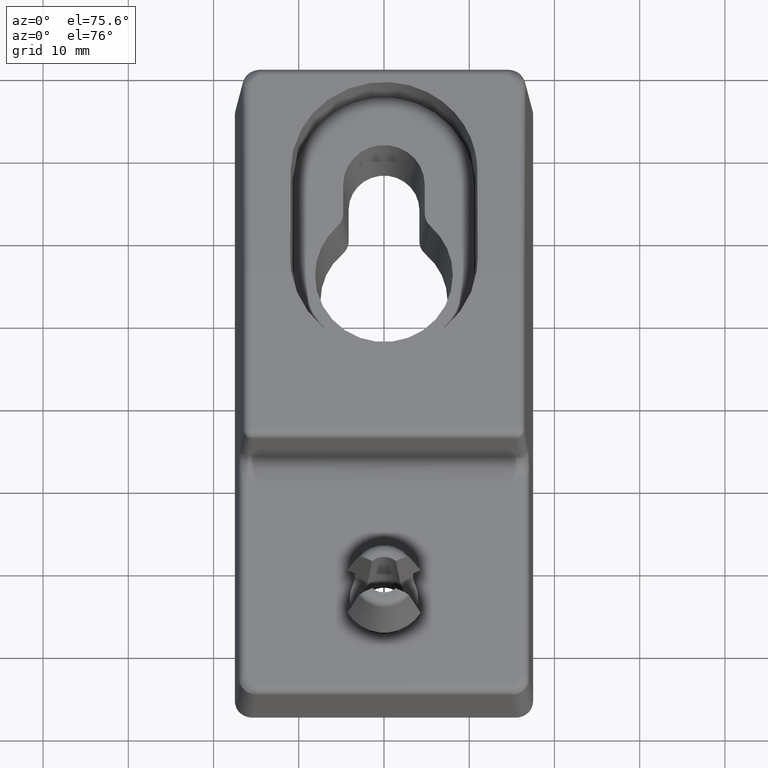
[diagram: clean part render]
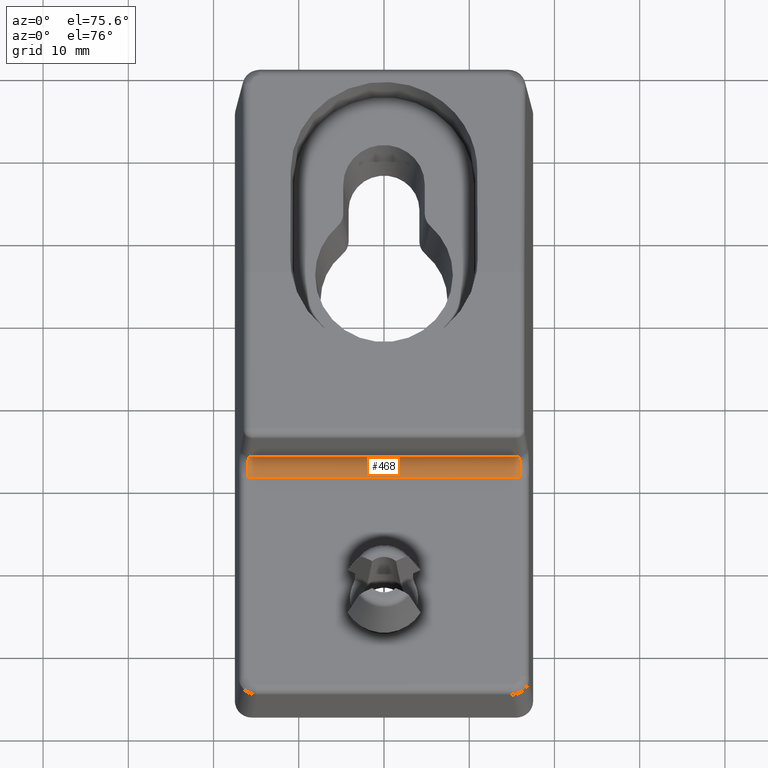
[diagram: same view with one face highlighted and labeled with its STEP entity id]
A machine part, auxiliary view. The second image highlights one B-rep face of the part: STEP entity #468.
In plain terms, the highlighted cylindrical surface (edge-blend (fillet) strip) has radius 2 mm, axis along (-1, 0, 0).
Its self-contained STEP definition (entity closure, byte-faithful):
#26 = CARTESIAN_POINT ( 'NONE',  ( 15.87704052916603600, -8.925670063920609500, 1.895328087514112500 ) ) ;
#34 = EDGE_CURVE ( 'NONE', #2832, #2117, #2043, .T. ) ;
#70 = CARTESIAN_POINT ( 'NONE',  ( -16.02603543328511600, -10.92292913342975800, 0.0000000000000000000 ) ) ;
#222 = ORIENTED_EDGE ( 'NONE', *, *, #587, .F. ) ;
#468 = ADVANCED_FACE ( 'NONE', ( #592 ), #1698, .F. ) ;
#587 = EDGE_CURVE ( 'NONE', #2832, #2307, #2272, .T. ) ;
#592 = FACE_OUTER_BOUND ( 'NONE', #2163, .T. ) ;
#604 = AXIS2_PLACEMENT_3D ( 'NONE', #2596, #3070, #2380 ) ;
#654 = CARTESIAN_POINT ( 'NONE',  ( 16.02603543328513100, -9.799428280176069700, -9.119841876925439000E-017 ) ) ;
#901 = CARTESIAN_POINT ( 'NONE',  ( 16.02603543328512400, -10.92292913342975800, 0.0000000000000000000 ) ) ;
#1154 = ORIENTED_EDGE ( 'NONE', *, *, #34, .T. ) ;
#1233 = DIRECTION ( 'NONE',  ( -1.000000000000000000, 0.0000000000000000000, -0.0000000000000000000 ) ) ;
#1240 = CARTESIAN_POINT ( 'NONE',  ( -15.87704052916603300, -8.925670063920609500, 1.895328087514112500 ) ) ;
#1270 = VECTOR ( 'NONE', #2494, 1000.000000000000000 ) ;
#1369 = CARTESIAN_POINT ( 'NONE',  ( -15.87704052916603300, -8.925670063920609500, 1.895328087514112500 ) ) ;
#1384 =( BOUNDED_CURVE ( )  B_SPLINE_CURVE ( 3, ( #1240, #1979, #1886, #2846 ),
 .UNSPECIFIED., .F., .F. ) 
 B_SPLINE_CURVE_WITH_KNOTS ( ( 4, 4 ),
 ( 4.764748857944521600, 6.283185307179588900 ),
 .UNSPECIFIED. ) 
 CURVE ( )  GEOMETRIC_REPRESENTATION_ITEM ( )  RATIONAL_B_SPLINE_CURVE ( ( 1.000000000000000000, 0.8169162473415250100, 0.8169162473415250100, 1.000000000000000000 ) ) 
 REPRESENTATION_ITEM ( '' )  );
#1420 = LINE ( 'NONE', #2739, #1270 ) ;
#1698 = CYLINDRICAL_SURFACE ( 'NONE', #604, 2.000000000000000000 ) ;
#1823 = CARTESIAN_POINT ( 'NONE',  ( 15.87704052916603600, -8.925670063920609500, 1.895328087514112500 ) ) ;
#1886 = CARTESIAN_POINT ( 'NONE',  ( -16.02603543328511300, -9.799428280176069700, -6.958613041258715300E-017 ) ) ;
#1979 = CARTESIAN_POINT ( 'NONE',  ( -15.96523976640822800, -8.984469555415405000, 0.7733669531330146200 ) ) ;
#2043 =( BOUNDED_CURVE ( )  B_SPLINE_CURVE ( 3, ( #901, #654, #2538, #1823 ),
 .UNSPECIFIED., .F., .F. ) 
 B_SPLINE_CURVE_WITH_KNOTS ( ( 4, 4 ),
 ( 3.141592653589794900, 4.660029102824862200 ),
 .UNSPECIFIED. ) 
 CURVE ( )  GEOMETRIC_REPRESENTATION_ITEM ( )  RATIONAL_B_SPLINE_CURVE ( ( 1.000000000000000000, 0.8169162473415250100, 0.8169162473415250100, 1.000000000000000000 ) ) 
 REPRESENTATION_ITEM ( '' )  );
#2117 = VERTEX_POINT ( 'NONE', #26 ) ;
#2163 = EDGE_LOOP ( 'NONE', ( #2241, #2824, #222, #1154 ) ) ;
#2241 = ORIENTED_EDGE ( 'NONE', *, *, #2978, .F. ) ;
#2272 = LINE ( 'NONE', #2699, #2678 ) ;
#2307 = VERTEX_POINT ( 'NONE', #70 ) ;
#2380 = DIRECTION ( 'NONE',  ( 0.0000000000000000000, 0.0000000000000000000, 1.000000000000000000 ) ) ;
#2494 = DIRECTION ( 'NONE',  ( 1.000000000000000000, 0.0000000000000000000, 0.0000000000000000000 ) ) ;
#2538 = CARTESIAN_POINT ( 'NONE',  ( 15.96523976640824700, -8.984469555415405000, 0.7733669531330142900 ) ) ;
#2596 = CARTESIAN_POINT ( 'NONE',  ( -16.97499999999999400, -10.92292913342975800, 2.000000000000000000 ) ) ;
#2612 = EDGE_CURVE ( 'NONE', #3039, #2307, #1384, .T. ) ;
#2678 = VECTOR ( 'NONE', #1233, 1000.000000000000000 ) ;
#2699 = CARTESIAN_POINT ( 'NONE',  ( -0.0000000000000000000, -10.92292913342975800, 0.0000000000000000000 ) ) ;
#2739 = CARTESIAN_POINT ( 'NONE',  ( -16.97499999999999400, -8.925670063920609500, 1.895328087514112500 ) ) ;
#2824 = ORIENTED_EDGE ( 'NONE', *, *, #2612, .T. ) ;
#2832 = VERTEX_POINT ( 'NONE', #2996 ) ;
#2846 = CARTESIAN_POINT ( 'NONE',  ( -16.02603543328511600, -10.92292913342975800, 0.0000000000000000000 ) ) ;
#2978 = EDGE_CURVE ( 'NONE', #3039, #2117, #1420, .T. ) ;
#2996 = CARTESIAN_POINT ( 'NONE',  ( 16.02603543328512400, -10.92292913342975800, 0.0000000000000000000 ) ) ;
#3039 = VERTEX_POINT ( 'NONE', #1369 ) ;
#3070 = DIRECTION ( 'NONE',  ( -1.000000000000000000, 0.0000000000000000000, 0.0000000000000000000 ) ) ;